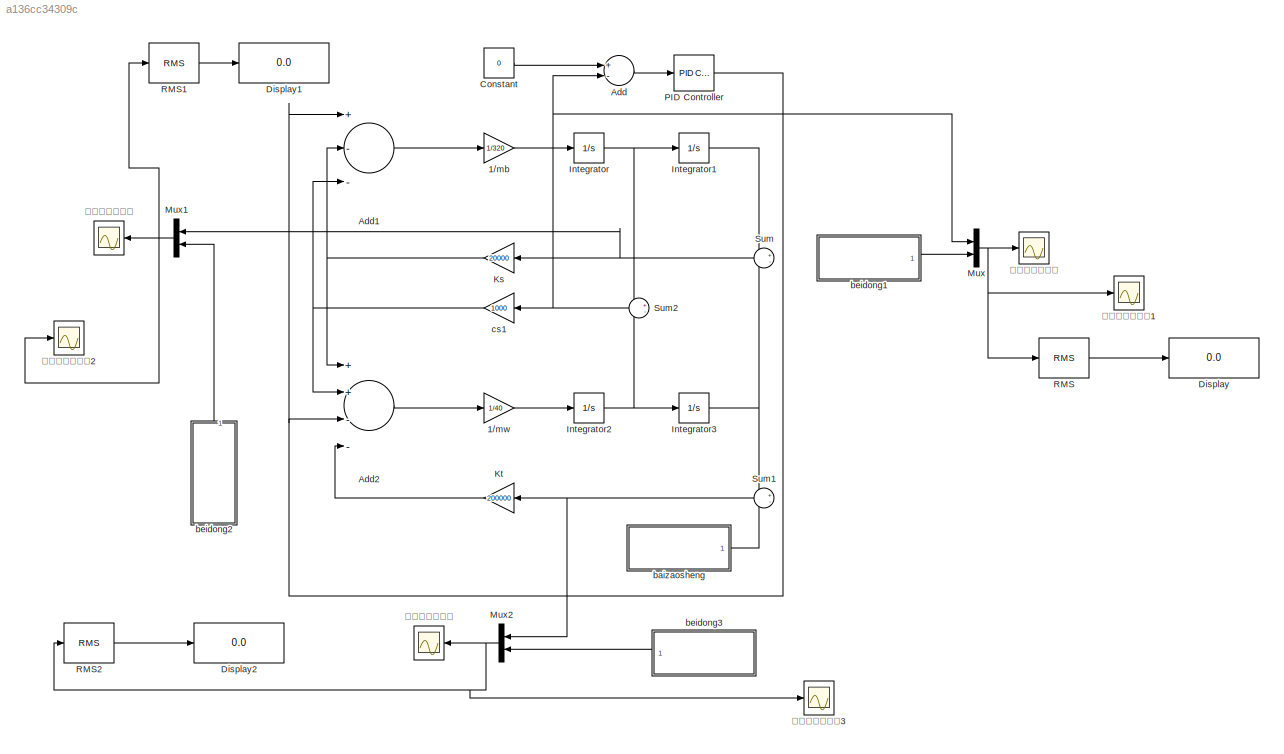
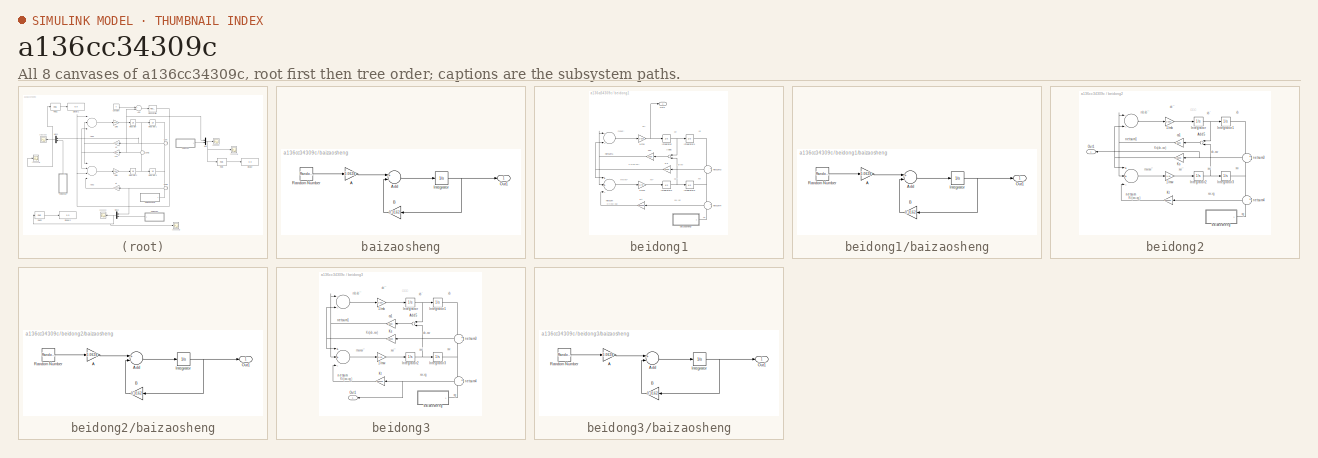
[diagram: thumbnail index - all 8 canvases of the model, root first then tree order]
MODEL slx_a136cc34309c
KIND model
CONFIG AbsTol = auto
CONFIG EnableMultiTasking = on
CONFIG FixedStep = auto
CONFIG MaxStep = auto
CONFIG MinStep = auto
CONFIG RelTol = 1e-3
CONFIG SampleTimeConstraint = Unconstrained
CONFIG Solver = ode45
CONFIG SolverName = ode45
CONFIG StartTime = 0.0
CONFIG StopTime = 10.0
BLOCK [Gain] 1//mb
  Gain = 1/320
  OutDataTypeStr = Inherit: Inherit via internal rule
  ParamDataTypeStr = Inherit: Inherit via internal rule
  SaturateOnIntegerOverflow = off
BLOCK [Gain] 1//mw
  Gain = 1/40
  OutDataTypeStr = Inherit: Inherit via internal rule
  ParamDataTypeStr = Inherit: Inherit via internal rule
  SaturateOnIntegerOverflow = off
BLOCK [Sum] Add
  InputSameDT = off
  Inputs = +-
  OutDataTypeStr = Inherit: Inherit via internal rule
  Ports = [2, 1]
  SaturateOnIntegerOverflow = off
BLOCK [Sum] Add1
  InputSameDT = off
  Inputs = +--
  OutDataTypeStr = Inherit: Inherit via internal rule
  Ports = [3, 1]
  SaturateOnIntegerOverflow = off
BLOCK [Sum] Add2
  InputSameDT = off
  Inputs = ++--
  OutDataTypeStr = Inherit: Inherit via internal rule
  Ports = [4, 1]
  SaturateOnIntegerOverflow = off
BLOCK [Constant] Constant
  Value = 0
BLOCK [Display] Display
  Decimation = 1
  Ports = [1]
BLOCK [Display] Display1
  Decimation = 1
  Ports = [1]
BLOCK [Display] Display2
  Decimation = 1
  Ports = [1]
BLOCK [Integrator] Integrator
  Ports = [1, 1]
BLOCK [Integrator] Integrator1
  Ports = [1, 1]
BLOCK [Integrator] Integrator2
  Ports = [1, 1]
BLOCK [Integrator] Integrator3
  Ports = [1, 1]
BLOCK [Gain] Ks
  Gain = 20000
  OutDataTypeStr = Inherit: Inherit via internal rule
  ParamDataTypeStr = Inherit: Inherit via internal rule
  SaturateOnIntegerOverflow = off
BLOCK [Gain] Kt
  Gain = 200000
  OutDataTypeStr = Inherit: Inherit via internal rule
  ParamDataTypeStr = Inherit: Inherit via internal rule
  SaturateOnIntegerOverflow = off
BLOCK [Mux] Mux
  DisplayOption = bar
  Inputs = 2
  Ports = [2, 1]
BLOCK [Mux] Mux1
  DisplayOption = bar
  Inputs = 2
  Ports = [2, 1]
BLOCK [Mux] Mux2
  DisplayOption = bar
  Inputs = 2
  Ports = [2, 1]
BLOCK [Reference] PID Controller  REF=simulink/Continuous/PID Controller
  Ports = [1, 1]
  SourceBlock = simulink/Continuous/PID Controller
  SourceProductBaseCode = SL
  SourceProductName = Simulink
  SourceType = PID 1dof
BLOCK [Reference] RMS  REF=powerlib_meascontrol/Measurements/RMS
  Ports = [1, 1]
  SourceBlock = powerlib_meascontrol/Measurements/RMS
  SourceProductBaseCode = PS
  SourceProductName = Simscape Power Systems
  SourceType = RMS
BLOCK [Reference] RMS1  REF=powerlib_meascontrol/Measurements/RMS
  Ports = [1, 1]
  SourceBlock = powerlib_meascontrol/Measurements/RMS
  SourceProductBaseCode = PS
  SourceProductName = Simscape Power Systems
  SourceType = RMS
BLOCK [Reference] RMS2  REF=powerlib_meascontrol/Measurements/RMS
  Ports = [1, 1]
  SourceBlock = powerlib_meascontrol/Measurements/RMS
  SourceProductBaseCode = PS
  SourceProductName = Simscape Power Systems
  SourceType = RMS
BLOCK [Sum] Sum
  IconShape = round
  InputSameDT = off
  Inputs = +-
  OutDataTypeStr = Inherit: Inherit via internal rule
  Ports = [2, 1]
  SaturateOnIntegerOverflow = off
BLOCK [Sum] Sum1
  IconShape = round
  InputSameDT = off
  Inputs = +-
  OutDataTypeStr = Inherit: Inherit via internal rule
  Ports = [2, 1]
  SaturateOnIntegerOverflow = off
BLOCK [Sum] Sum2
  IconShape = round
  InputSameDT = off
  Inputs = +-
  OutDataTypeStr = Inherit: Inherit via internal rule
  Ports = [2, 1]
  SaturateOnIntegerOverflow = off
BLOCK [SubSystem] baizaosheng
  Ports = [0, 1]
  RequestExecContextInheritance = off
  Variant = off
BLOCK [Gain] baizaosheng/A
  Gain = 0.0628
  OutDataTypeStr = Inherit: Inherit via internal rule
  ParamDataTypeStr = Inherit: Inherit via internal rule
  SaturateOnIntegerOverflow = off
BLOCK [Sum] baizaosheng/Add
  InputSameDT = off
  Inputs = +-
  OutDataTypeStr = Inherit: Inherit via internal rule
  Ports = [2, 1]
  SaturateOnIntegerOverflow = off
BLOCK [Gain] baizaosheng/B
  Gain = 0.3162
  OutDataTypeStr = Inherit: Inherit via internal rule
  ParamDataTypeStr = Inherit: Inherit via internal rule
  SaturateOnIntegerOverflow = off
BLOCK [Integrator] baizaosheng/Integrator
  Ports = [1, 1]
BLOCK [Outport] baizaosheng/Out1
  IconDisplay = Port number
BLOCK [RandomNumber] baizaosheng/Random Number
  SampleTime = 0.1
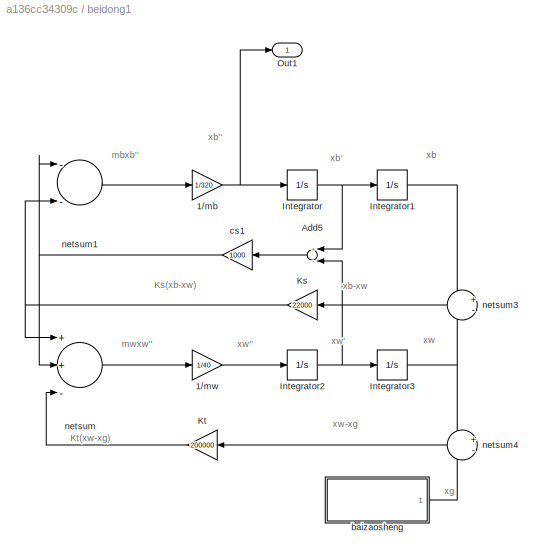
BLOCK [SubSystem] beidong1
  Ports = [0, 1]
  RequestExecContextInheritance = off
  Variant = off
BLOCK [Gain] beidong1/1//mb
  Gain = 1/320
  OutDataTypeStr = Inherit: Inherit via internal rule
  ParamDataTypeStr = Inherit: Inherit via internal rule
  SaturateOnIntegerOverflow = off
BLOCK [Gain] beidong1/1//mw
  Gain = 1/40
  OutDataTypeStr = Inherit: Inherit via internal rule
  ParamDataTypeStr = Inherit: Inherit via internal rule
  SaturateOnIntegerOverflow = off
BLOCK [Sum] beidong1/Add5
  InputSameDT = off
  Inputs = +-
  OutDataTypeStr = Inherit: Inherit via internal rule
  Ports = [2, 1]
  SaturateOnIntegerOverflow = off
BLOCK [Integrator] beidong1/Integrator
  Ports = [1, 1]
BLOCK [Integrator] beidong1/Integrator1
  Ports = [1, 1]
BLOCK [Integrator] beidong1/Integrator2
  Ports = [1, 1]
BLOCK [Integrator] beidong1/Integrator3
  Ports = [1, 1]
BLOCK [Gain] beidong1/Ks
  Gain = 22000
  OutDataTypeStr = Inherit: Inherit via internal rule
  ParamDataTypeStr = Inherit: Inherit via internal rule
  SaturateOnIntegerOverflow = off
BLOCK [Gain] beidong1/Kt
  Gain = 200000
  OutDataTypeStr = Inherit: Inherit via internal rule
  ParamDataTypeStr = Inherit: Inherit via internal rule
  SaturateOnIntegerOverflow = off
BLOCK [Outport] beidong1/Out1
  IconDisplay = Port number
BLOCK [SubSystem] beidong1/baizaosheng
  Ports = [0, 1]
  RequestExecContextInheritance = off
  Variant = off
BLOCK [Gain] beidong1/baizaosheng/A
  Gain = 0.0628
  OutDataTypeStr = Inherit: Inherit via internal rule
  ParamDataTypeStr = Inherit: Inherit via internal rule
  SaturateOnIntegerOverflow = off
BLOCK [Sum] beidong1/baizaosheng/Add
  InputSameDT = off
  Inputs = +-
  OutDataTypeStr = Inherit: Inherit via internal rule
  Ports = [2, 1]
  SaturateOnIntegerOverflow = off
BLOCK [Gain] beidong1/baizaosheng/B
  Gain = 0.3162
  OutDataTypeStr = Inherit: Inherit via internal rule
  ParamDataTypeStr = Inherit: Inherit via internal rule
  SaturateOnIntegerOverflow = off
BLOCK [Integrator] beidong1/baizaosheng/Integrator
  Ports = [1, 1]
BLOCK [Outport] beidong1/baizaosheng/Out1
  IconDisplay = Port number
BLOCK [RandomNumber] beidong1/baizaosheng/Random Number
  SampleTime = 0.1
BLOCK [Gain] beidong1/cs1
  Gain = 1000
  OutDataTypeStr = Inherit: Inherit via internal rule
  ParamDataTypeStr = Inherit: Inherit via internal rule
  SaturateOnIntegerOverflow = off
BLOCK [Sum] beidong1/netsum
  Inputs = ++-
  Ports = [3, 1]
BLOCK [Sum] beidong1/netsum1
  Inputs = --
  Ports = [2, 1]
BLOCK [Sum] beidong1/netsum3
  IconShape = round
  Inputs = +-
  Ports = [2, 1]
BLOCK [Sum] beidong1/netsum4
  IconShape = round
  Inputs = +-
  Ports = [2, 1]
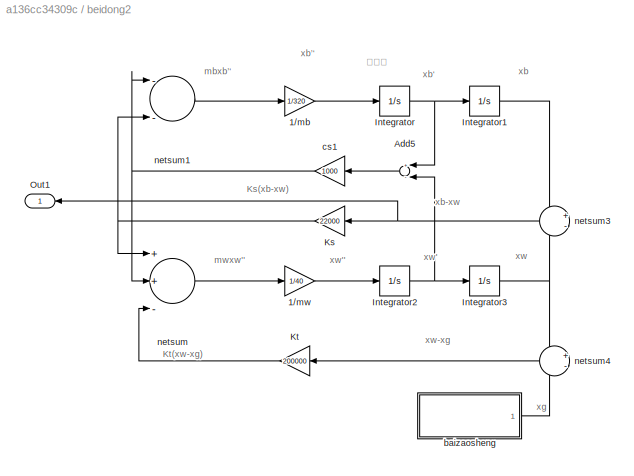
BLOCK [SubSystem] beidong2
  Ports = [0, 1]
  RequestExecContextInheritance = off
  Variant = off
BLOCK [Gain] beidong2/1//mb
  Gain = 1/320
  OutDataTypeStr = Inherit: Inherit via internal rule
  ParamDataTypeStr = Inherit: Inherit via internal rule
  SaturateOnIntegerOverflow = off
BLOCK [Gain] beidong2/1//mw
  Gain = 1/40
  OutDataTypeStr = Inherit: Inherit via internal rule
  ParamDataTypeStr = Inherit: Inherit via internal rule
  SaturateOnIntegerOverflow = off
BLOCK [Sum] beidong2/Add5
  InputSameDT = off
  Inputs = +-
  OutDataTypeStr = Inherit: Inherit via internal rule
  Ports = [2, 1]
  SaturateOnIntegerOverflow = off
BLOCK [Integrator] beidong2/Integrator
  Ports = [1, 1]
BLOCK [Integrator] beidong2/Integrator1
  Ports = [1, 1]
BLOCK [Integrator] beidong2/Integrator2
  Ports = [1, 1]
BLOCK [Integrator] beidong2/Integrator3
  Ports = [1, 1]
BLOCK [Gain] beidong2/Ks
  Gain = 22000
  OutDataTypeStr = Inherit: Inherit via internal rule
  ParamDataTypeStr = Inherit: Inherit via internal rule
  SaturateOnIntegerOverflow = off
BLOCK [Gain] beidong2/Kt
  Gain = 200000
  OutDataTypeStr = Inherit: Inherit via internal rule
  ParamDataTypeStr = Inherit: Inherit via internal rule
  SaturateOnIntegerOverflow = off
BLOCK [Outport] beidong2/Out1
  IconDisplay = Port number
BLOCK [SubSystem] beidong2/baizaosheng
  Ports = [0, 1]
  RequestExecContextInheritance = off
  Variant = off
BLOCK [Gain] beidong2/baizaosheng/A
  Gain = 0.0628
  OutDataTypeStr = Inherit: Inherit via internal rule
  ParamDataTypeStr = Inherit: Inherit via internal rule
  SaturateOnIntegerOverflow = off
BLOCK [Sum] beidong2/baizaosheng/Add
  InputSameDT = off
  Inputs = +-
  OutDataTypeStr = Inherit: Inherit via internal rule
  Ports = [2, 1]
  SaturateOnIntegerOverflow = off
BLOCK [Gain] beidong2/baizaosheng/B
  Gain = 0.3162
  OutDataTypeStr = Inherit: Inherit via internal rule
  ParamDataTypeStr = Inherit: Inherit via internal rule
  SaturateOnIntegerOverflow = off
BLOCK [Integrator] beidong2/baizaosheng/Integrator
  Ports = [1, 1]
BLOCK [Outport] beidong2/baizaosheng/Out1
  IconDisplay = Port number
BLOCK [RandomNumber] beidong2/baizaosheng/Random Number
  SampleTime = 0.1
BLOCK [Gain] beidong2/cs1
  Gain = 1000
  OutDataTypeStr = Inherit: Inherit via internal rule
  ParamDataTypeStr = Inherit: Inherit via internal rule
  SaturateOnIntegerOverflow = off
BLOCK [Sum] beidong2/netsum
  Inputs = ++-
  Ports = [3, 1]
BLOCK [Sum] beidong2/netsum1
  Inputs = --
  Ports = [2, 1]
BLOCK [Sum] beidong2/netsum3
  IconShape = round
  Inputs = +-
  Ports = [2, 1]
BLOCK [Sum] beidong2/netsum4
  IconShape = round
  Inputs = +-
  Ports = [2, 1]
BLOCK [SubSystem] beidong3
  Ports = [0, 1]
  RequestExecContextInheritance = off
  Variant = off
BLOCK [Gain] beidong3/1//mb
  Gain = 1/320
  OutDataTypeStr = Inherit: Inherit via internal rule
  ParamDataTypeStr = Inherit: Inherit via internal rule
  SaturateOnIntegerOverflow = off
BLOCK [Gain] beidong3/1//mw
  Gain = 1/40
  OutDataTypeStr = Inherit: Inherit via internal rule
  ParamDataTypeStr = Inherit: Inherit via internal rule
  SaturateOnIntegerOverflow = off
BLOCK [Sum] beidong3/Add5
  InputSameDT = off
  Inputs = +-
  OutDataTypeStr = Inherit: Inherit via internal rule
  Ports = [2, 1]
  SaturateOnIntegerOverflow = off
BLOCK [Integrator] beidong3/Integrator
  Ports = [1, 1]
BLOCK [Integrator] beidong3/Integrator1
  Ports = [1, 1]
BLOCK [Integrator] beidong3/Integrator2
  Ports = [1, 1]
BLOCK [Integrator] beidong3/Integrator3
  Ports = [1, 1]
BLOCK [Gain] beidong3/Ks
  Gain = 22000
  OutDataTypeStr = Inherit: Inherit via internal rule
  ParamDataTypeStr = Inherit: Inherit via internal rule
  SaturateOnIntegerOverflow = off
BLOCK [Gain] beidong3/Kt
  Gain = 200000
  OutDataTypeStr = Inherit: Inherit via internal rule
  ParamDataTypeStr = Inherit: Inherit via internal rule
  SaturateOnIntegerOverflow = off
BLOCK [Outport] beidong3/Out1
  IconDisplay = Port number
BLOCK [SubSystem] beidong3/baizaosheng
  Ports = [0, 1]
  RequestExecContextInheritance = off
  Variant = off
BLOCK [Gain] beidong3/baizaosheng/A
  Gain = 0.0628
  OutDataTypeStr = Inherit: Inherit via internal rule
  ParamDataTypeStr = Inherit: Inherit via internal rule
  SaturateOnIntegerOverflow = off
BLOCK [Sum] beidong3/baizaosheng/Add
  InputSameDT = off
  Inputs = +-
  OutDataTypeStr = Inherit: Inherit via internal rule
  Ports = [2, 1]
  SaturateOnIntegerOverflow = off
BLOCK [Gain] beidong3/baizaosheng/B
  Gain = 0.3162
  OutDataTypeStr = Inherit: Inherit via internal rule
  ParamDataTypeStr = Inherit: Inherit via internal rule
  SaturateOnIntegerOverflow = off
BLOCK [Integrator] beidong3/baizaosheng/Integrator
  Ports = [1, 1]
BLOCK [Outport] beidong3/baizaosheng/Out1
  IconDisplay = Port number
BLOCK [RandomNumber] beidong3/baizaosheng/Random Number
  SampleTime = 0.1
BLOCK [Gain] beidong3/cs1
  Gain = 1000
  OutDataTypeStr = Inherit: Inherit via internal rule
  ParamDataTypeStr = Inherit: Inherit via internal rule
  SaturateOnIntegerOverflow = off
BLOCK [Sum] beidong3/netsum
  Inputs = ++-
  Ports = [3, 1]
BLOCK [Sum] beidong3/netsum1
  Inputs = --
  Ports = [2, 1]
BLOCK [Sum] beidong3/netsum3
  IconShape = round
  Inputs = +-
  Ports = [2, 1]
BLOCK [Sum] beidong3/netsum4
  IconShape = round
  Inputs = +-
  Ports = [2, 1]
BLOCK [Gain] cs1
  Gain = 1000
  OutDataTypeStr = Inherit: Inherit via internal rule
  ParamDataTypeStr = Inherit: Inherit via internal rule
  SaturateOnIntegerOverflow = off
BLOCK [Scope] 悬架动行程对比
  NumInputPorts = 1
  Ports = [1]
  ScopeSpecificationString = C++SS(StrPVP('Location','[5, 56, 1919, 1074]'),StrPVP('Open','off'),MxPVP('AxesTitles',53,'struct(''axes1'',''%<SignalLabel>'')'),MxPVP('ScopeGraphics',56,'struct(''FigureColor'',''[0.5 0.5 0.5]'',''AxesColor'',''[0 0 0]'',''AxesTickColor'',''[1 1 1]'',''LineColors'',''[1 1 0;1 0 1;0 1 1;1 0 0;0 1 0;0 0 1]'',''LineStyles'',''-|-|-|-|-|-'',''LineWidths'',''[0.5 0.5 0.5 0.5 0.5 0.5]'',''MarkerStyles...<+294ch>
BLOCK [Scope] 车身加速度对比
  NumInputPorts = 1
  Ports = [1]
  ScopeSpecificationString = C++SS(StrPVP('Location','[1, 55, 1921, 1079]'),StrPVP('Open','off'),MxPVP('AxesTitles',53,'struct(''axes1'',''%<SignalLabel>'')'),MxPVP('ScopeGraphics',56,'struct(''FigureColor'',''[0.5 0.5 0.5]'',''AxesColor'',''[0 0 0]'',''AxesTickColor'',''[1 1 1]'',''LineColors'',''[1 1 0;1 0 1;0 1 1;1 0 0;0 1 0;0 0 1]'',''LineStyles'',''-|-|-|-|-|-'',''LineWidths'',''[0.5 0.5 0.5 0.5 0.5 0.5]'',''MarkerStyles...<+260ch>
BLOCK [Scope] 车身加速度对比1
  NumInputPorts = 1
  Ports = [1]
  ScopeSpecificationString = Simulink.scopes.TimeScopeBlockCfg('CurrentConfiguration', extmgr.ConfigurationSet(extmgr.Configuration('Core','General UI',true,'FigureColor',[1 1 1]),extmgr.Configuration('Core','Source UI',true),extmgr.Configuration('Sources','WiredSimulink',true,'DataLoggingVariableName','ScopeData6','DataLoggingLimitDataPoints',true,'DataLoggingSaveFormat','Array','DataLoggingDecimation','1','DataLoggingDecima...<+2748ch>
BLOCK [Scope] 车身加速度对比2
  NumInputPorts = 1
  Ports = [1]
  ScopeSpecificationString = C++SS(StrPVP('Location','[1, 55, 1921, 1079]'),StrPVP('Open','off'),MxPVP('AxesTitles',53,'struct(''axes1'',''%<SignalLabel>'')'),MxPVP('ScopeGraphics',56,'struct(''FigureColor'',''[1 1 1]'',''AxesColor'',''[1 1 1]'',''AxesTickColor'',''[0 0 0]'',''LineColors'',''[0 0 0;0 0 0;0 1 1;1 0 0;0 1 0;0 0 1]'',''LineStyles'',''-|--|-|-|-|-'',''LineWidths'',''[2 2 0.5 0.5 0.5 0.5]'',''MarkerStyles'',''none...<+214ch>
BLOCK [Scope] 车身加速度对比3
  NumInputPorts = 1
  Ports = [1]
  ScopeSpecificationString = C++SS(StrPVP('Location','[1, 55, 1921, 1041]'),StrPVP('Open','off'),MxPVP('AxesTitles',53,'struct(''axes1'',''%<SignalLabel>'')'),MxPVP('ScopeGraphics',56,'struct(''FigureColor'',''[1 1 1]'',''AxesColor'',''[1 1 1]'',''AxesTickColor'',''[0 0 0]'',''LineColors'',''[0 0 0;0 0 0;0 1 1;1 0 0;0 1 0;0 0 1]'',''LineStyles'',''-|--|-|-|-|-'',''LineWidths'',''[2 2 0.5 0.5 0.5 0.5]'',''MarkerStyles'',''none...<+214ch>
BLOCK [Scope] 轮胎动位移对比
  NumInputPorts = 1
  Ports = [1]
  ScopeSpecificationString = C++SS(StrPVP('Location','[640, 471, 1322, 906]'),StrPVP('Open','off'),StrPVP('ZoomMode','yonly'),MxPVP('AxesTitles',53,'struct(''axes1'',''%<SignalLabel>'')'),MxPVP('ScopeGraphics',56,'struct(''FigureColor'',''[0.5 0.5 0.5]'',''AxesColor'',''[0 0 0]'',''AxesTickColor'',''[1 1 1]'',''LineColors'',''[1 1 0;1 0 1;0 1 1;1 0 0;0 1 0;0 0 1]'',''LineStyles'',''-|-|-|-|-|-'',''LineWidths'',''[0.5 0.5 0.5 ...<+252ch>
ANNOTATION beidong1: Ks(xb-xw)
ANNOTATION beidong1: Kt(xw-xg)
ANNOTATION beidong1: mbxb’‘
ANNOTATION beidong1: mwxw''
ANNOTATION beidong1: xb
ANNOTATION beidong1: xb-xw
ANNOTATION beidong1: xb‘
ANNOTATION beidong1: xb’‘
ANNOTATION beidong1: xg
ANNOTATION beidong1: xw
ANNOTATION beidong1: xw'
ANNOTATION beidong1: xw''
ANNOTATION beidong1: xw-xg
ANNOTATION beidong2: Ks(xb-xw)
ANNOTATION beidong2: Kt(xw-xg)
ANNOTATION beidong2: mbxb’‘
ANNOTATION beidong2: mwxw''
ANNOTATION beidong2: xb
ANNOTATION beidong2: xb-xw
ANNOTATION beidong2: xb‘
ANNOTATION beidong2: xb’‘
ANNOTATION beidong2: xg
ANNOTATION beidong2: xw
ANNOTATION beidong2: xw'
ANNOTATION beidong2: xw''
ANNOTATION beidong2: xw-xg
ANNOTATION beidong2: 积分器
ANNOTATION beidong3: Ks(xb-xw)
ANNOTATION beidong3: Kt(xw-xg)
ANNOTATION beidong3: mbxb’‘
ANNOTATION beidong3: mwxw''
ANNOTATION beidong3: xb
ANNOTATION beidong3: xb-xw
ANNOTATION beidong3: xb‘
ANNOTATION beidong3: xb’‘
ANNOTATION beidong3: xg
ANNOTATION beidong3: xw
ANNOTATION beidong3: xw'
ANNOTATION beidong3: xw''
ANNOTATION beidong3: xw-xg
ANNOTATION beidong3: 积分器
LINE 1//mb:1 -> Integrator:1
LINE 1//mw:1 -> Integrator2:1
LINE Add1:1 -> 1//mb:1
LINE Add2:1 -> 1//mw:1
LINE Add:1 -> PID Controller:1
LINE Constant:1 -> Add:1
LINE Integrator1:1 -> Sum:1
NET Integrator2:1 -> Integrator3:1, Sum2:2
NET Integrator3:1 -> Sum1:1, Sum:2
NET Integrator:1 -> Integrator1:1, Sum2:1
NET Ks:1 -> Add1:2, Add2:1
LINE Kt:1 -> Add2:4
NET Mux1:1 -> RMS1:1, 悬架动行程对比:1, 车身加速度对比2:1
NET Mux2:1 -> RMS2:1, 车身加速度对比3:1, 轮胎动位移对比:1
NET Mux:1 -> RMS:1, 车身加速度对比1:1, 车身加速度对比:1
NET PID Controller:1 -> Add1:1, Add2:3
LINE RMS1:1 -> Display1:1
LINE RMS2:1 -> Display2:1
LINE RMS:1 -> Display:1
NET Sum1:1 -> Kt:1, Mux2:1
NET Sum2:1 -> Add:2, Mux:1, cs1:1
NET Sum:1 -> Ks:1, Mux1:1
LINE baizaosheng/A:1 -> baizaosheng/Add:1
LINE baizaosheng/Add:1 -> baizaosheng/Integrator:1
LINE baizaosheng/B:1 -> baizaosheng/Add:2
NET baizaosheng/Integrator:1 -> baizaosheng/B:1, baizaosheng/Out1:1
LINE baizaosheng/Random Number:1 -> baizaosheng/A:1
LINE baizaosheng:1 -> Sum1:2
NET beidong1/1//mb:1 -> beidong1/Integrator:1, beidong1/Out1:1
LINE beidong1/1//mw:1 -> beidong1/Integrator2:1
LINE beidong1/Add5:1 -> beidong1/cs1:1
LINE beidong1/Integrator1:1 -> beidong1/netsum3:1
NET beidong1/Integrator2:1 -> beidong1/Add5:2, beidong1/Integrator3:1
NET beidong1/Integrator3:1 -> beidong1/netsum3:2, beidong1/netsum4:1
NET beidong1/Integrator:1 -> beidong1/Add5:1, beidong1/Integrator1:1
NET beidong1/Ks:1 -> beidong1/netsum1:2, beidong1/netsum:1
LINE beidong1/Kt:1 -> beidong1/netsum:3
LINE beidong1/baizaosheng/A:1 -> beidong1/baizaosheng/Add:1
LINE beidong1/baizaosheng/Add:1 -> beidong1/baizaosheng/Integrator:1
LINE beidong1/baizaosheng/B:1 -> beidong1/baizaosheng/Add:2
NET beidong1/baizaosheng/Integrator:1 -> beidong1/baizaosheng/B:1, beidong1/baizaosheng/Out1:1
LINE beidong1/baizaosheng/Random Number:1 -> beidong1/baizaosheng/A:1
LINE beidong1/baizaosheng:1 -> beidong1/netsum4:2
NET beidong1/cs1:1 -> beidong1/netsum1:1, beidong1/netsum:2
LINE beidong1/netsum1:1 -> beidong1/1//mb:1
LINE beidong1/netsum3:1 -> beidong1/Ks:1
LINE beidong1/netsum4:1 -> beidong1/Kt:1
LINE beidong1/netsum:1 -> beidong1/1//mw:1
LINE beidong1:1 -> Mux:2
LINE beidong2/1//mb:1 -> beidong2/Integrator:1
LINE beidong2/1//mw:1 -> beidong2/Integrator2:1
LINE beidong2/Add5:1 -> beidong2/cs1:1
LINE beidong2/Integrator1:1 -> beidong2/netsum3:1
NET beidong2/Integrator2:1 -> beidong2/Add5:2, beidong2/Integrator3:1
NET beidong2/Integrator3:1 -> beidong2/netsum3:2, beidong2/netsum4:1
NET beidong2/Integrator:1 -> beidong2/Add5:1, beidong2/Integrator1:1
NET beidong2/Ks:1 -> beidong2/netsum1:2, beidong2/netsum:1
LINE beidong2/Kt:1 -> beidong2/netsum:3
LINE beidong2/baizaosheng/A:1 -> beidong2/baizaosheng/Add:1
LINE beidong2/baizaosheng/Add:1 -> beidong2/baizaosheng/Integrator:1
LINE beidong2/baizaosheng/B:1 -> beidong2/baizaosheng/Add:2
NET beidong2/baizaosheng/Integrator:1 -> beidong2/baizaosheng/B:1, beidong2/baizaosheng/Out1:1
LINE beidong2/baizaosheng/Random Number:1 -> beidong2/baizaosheng/A:1
LINE beidong2/baizaosheng:1 -> beidong2/netsum4:2
NET beidong2/cs1:1 -> beidong2/netsum1:1, beidong2/netsum:2
LINE beidong2/netsum1:1 -> beidong2/1//mb:1
NET beidong2/netsum3:1 -> beidong2/Ks:1, beidong2/Out1:1
LINE beidong2/netsum4:1 -> beidong2/Kt:1
LINE beidong2/netsum:1 -> beidong2/1//mw:1
LINE beidong2:1 -> Mux1:2
LINE beidong3/1//mb:1 -> beidong3/Integrator:1
LINE beidong3/1//mw:1 -> beidong3/Integrator2:1
LINE beidong3/Add5:1 -> beidong3/cs1:1
LINE beidong3/Integrator1:1 -> beidong3/netsum3:1
NET beidong3/Integrator2:1 -> beidong3/Add5:2, beidong3/Integrator3:1
NET beidong3/Integrator3:1 -> beidong3/netsum3:2, beidong3/netsum4:1
NET beidong3/Integrator:1 -> beidong3/Add5:1, beidong3/Integrator1:1
NET beidong3/Ks:1 -> beidong3/netsum1:2, beidong3/netsum:1
LINE beidong3/Kt:1 -> beidong3/netsum:3
LINE beidong3/baizaosheng/A:1 -> beidong3/baizaosheng/Add:1
LINE beidong3/baizaosheng/Add:1 -> beidong3/baizaosheng/Integrator:1
LINE beidong3/baizaosheng/B:1 -> beidong3/baizaosheng/Add:2
NET beidong3/baizaosheng/Integrator:1 -> beidong3/baizaosheng/B:1, beidong3/baizaosheng/Out1:1
LINE beidong3/baizaosheng/Random Number:1 -> beidong3/baizaosheng/A:1
LINE beidong3/baizaosheng:1 -> beidong3/netsum4:2
NET beidong3/cs1:1 -> beidong3/netsum1:1, beidong3/netsum:2
LINE beidong3/netsum1:1 -> beidong3/1//mb:1
LINE beidong3/netsum3:1 -> beidong3/Ks:1
NET beidong3/netsum4:1 -> beidong3/Kt:1, beidong3/Out1:1
LINE beidong3/netsum:1 -> beidong3/1//mw:1
LINE beidong3:1 -> Mux2:2
NET cs1:1 -> Add1:3, Add2:2
note: NET lines group one-source signal fan-out (src -> all destinations, sorted); 1:1 wires keep LINE
